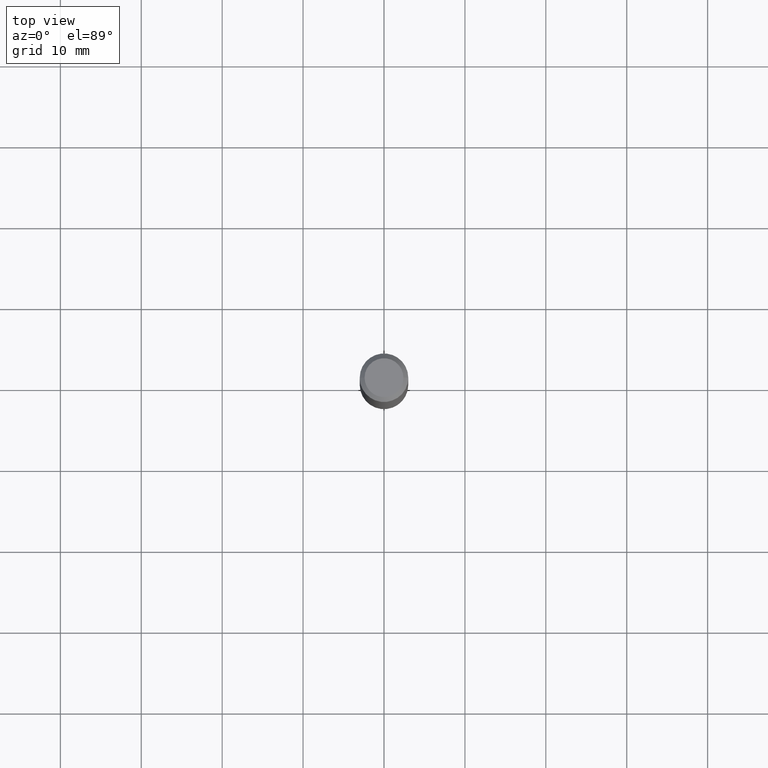
[diagram: clean part render]
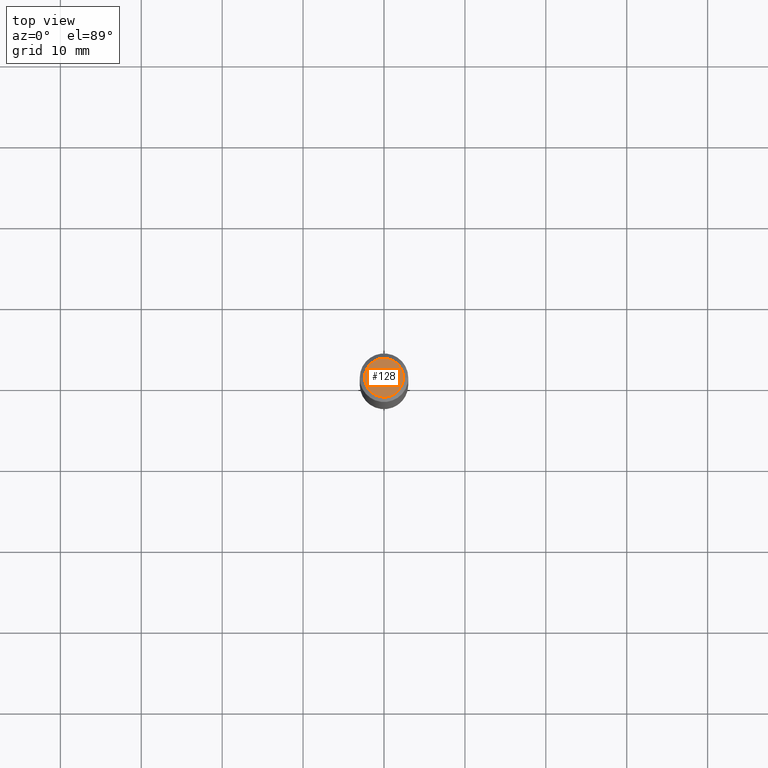
[diagram: same view with one face highlighted and labeled with its STEP entity id]
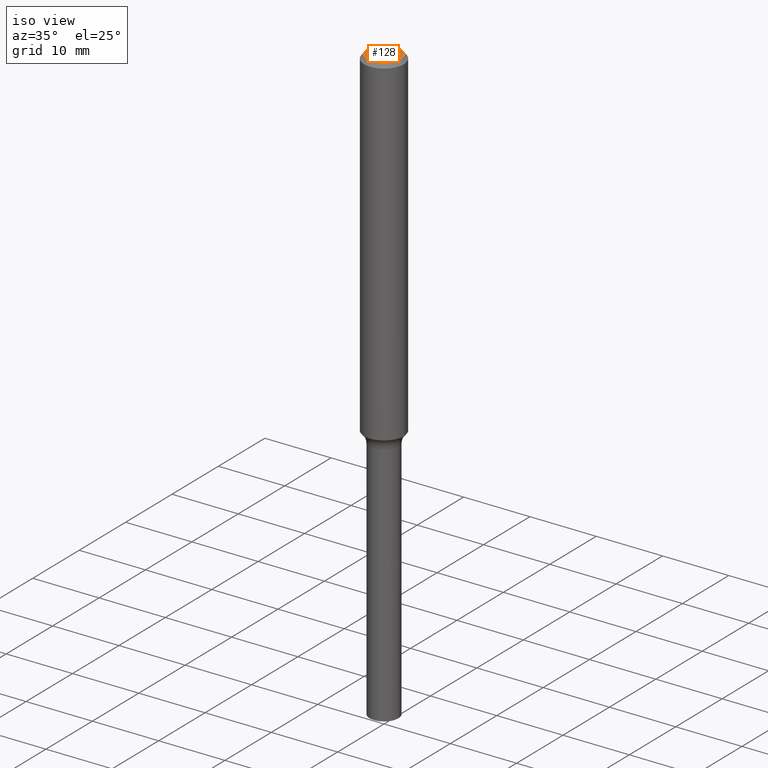
[diagram: same view with one face highlighted and labeled with its STEP entity id]
A machine part, top view. The second image highlights one B-rep face of the part: STEP entity #128.
A second angle (iso view) of the same face is appended — the face is thin or edge-on in the first view.
In plain terms, the highlighted planar face has unit normal (0, -0, -1).
Its self-contained STEP definition (entity closure, byte-faithful):
#29 = EDGE_CURVE ( 'NONE', #384, #154, #292, .T. ) ;
#62 = PLANE ( 'NONE',  #189 ) ;
#69 = ORIENTED_EDGE ( 'NONE', *, *, #29, .T. ) ;
#81 = DIRECTION ( 'NONE',  ( -2.445468806185136597E-29, 3.491481338843145583E-15, 1.000000000000000000 ) ) ;
#88 = AXIS2_PLACEMENT_3D ( 'NONE', #316, #81, #438 ) ;
#114 = EDGE_LOOP ( 'NONE', ( #69, #506 ) ) ;
#128 = ADVANCED_FACE ( 'NONE', ( #408 ), #62, .F. ) ;
#134 = CARTESIAN_POINT ( 'NONE',  ( 7.545787641473140628E-46, -1.077338491108201769E-31, -3.085620075131671975E-17 ) ) ;
#154 = VERTEX_POINT ( 'NONE', #367 ) ;
#186 = EDGE_CURVE ( 'NONE', #154, #384, #390, .T. ) ;
#189 = AXIS2_PLACEMENT_3D ( 'NONE', #215, #209, #252 ) ;
#209 = DIRECTION ( 'NONE',  ( 2.438088387897960049E-29, -3.491481338843145188E-15, -1.000000000000000000 ) ) ;
#215 = CARTESIAN_POINT ( 'NONE',  ( 3.772893820736570314E-46, -5.386692455541008845E-32, -1.542810037565835988E-17 ) ) ;
#249 = AXIS2_PLACEMENT_3D ( 'NONE', #134, #294, #486 ) ;
#252 = DIRECTION ( 'NONE',  ( -1.000000000000000000, 6.982962677686265922E-15, -4.876176775795935793E-29 ) ) ;
#292 = CIRCLE ( 'NONE', #88, 0.09447999999999998066 ) ;
#294 = DIRECTION ( 'NONE',  ( -2.445468806185136597E-29, 3.491481338843145583E-15, 1.000000000000000000 ) ) ;
#316 = CARTESIAN_POINT ( 'NONE',  ( 7.545787641473140628E-46, -1.077338491108201769E-31, -3.085620075131671975E-17 ) ) ;
#367 = CARTESIAN_POINT ( 'NONE',  ( 0.09447999999999998066, -7.704367267948738690E-16, -3.085620075131172158E-17 ) ) ;
#384 = VERTEX_POINT ( 'NONE', #487 ) ;
#390 = CIRCLE ( 'NONE', #249, 0.09447999999999998066 ) ;
#408 = FACE_OUTER_BOUND ( 'NONE', #114, .T. ) ;
#438 = DIRECTION ( 'NONE',  ( 1.000000000000000000, -6.982962677686267499E-15, 4.875432709231658792E-29 ) ) ;
#486 = DIRECTION ( 'NONE',  ( 1.000000000000000000, -6.982962677686267499E-15, 4.875432709231658792E-29 ) ) ;
#487 = CARTESIAN_POINT ( 'NONE',  ( -0.09447999999999998066, 7.009847083995354710E-16, -3.085620075132147757E-17 ) ) ;
#506 = ORIENTED_EDGE ( 'NONE', *, *, #186, .T. ) ;